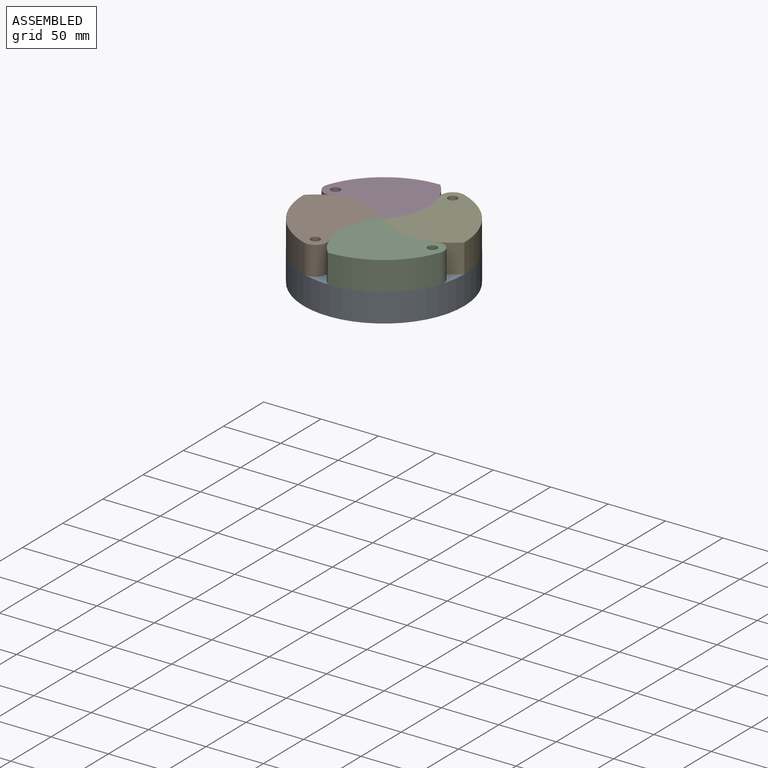
[diagram: assembled view]
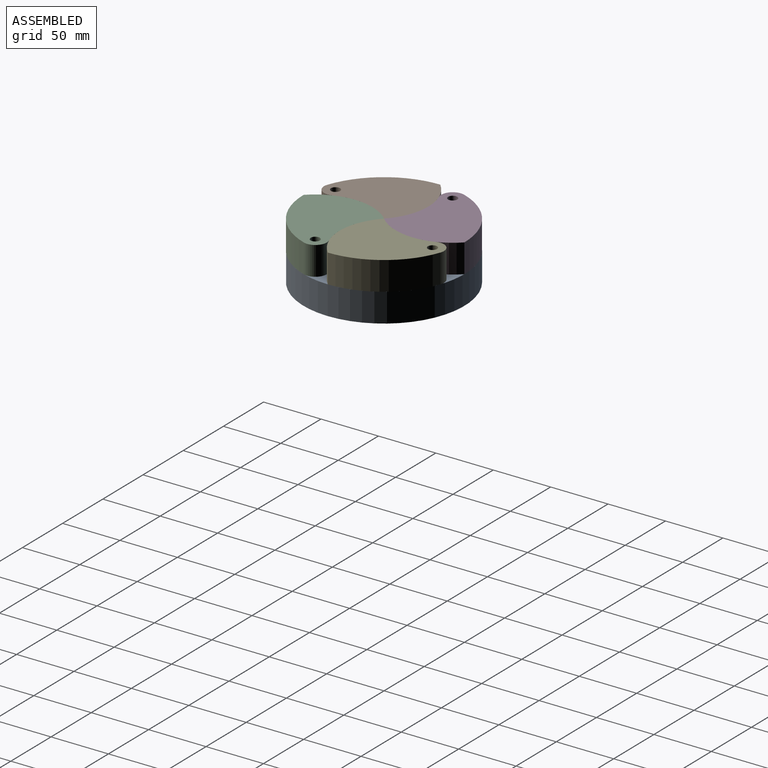
[diagram: assembled view, second angle]
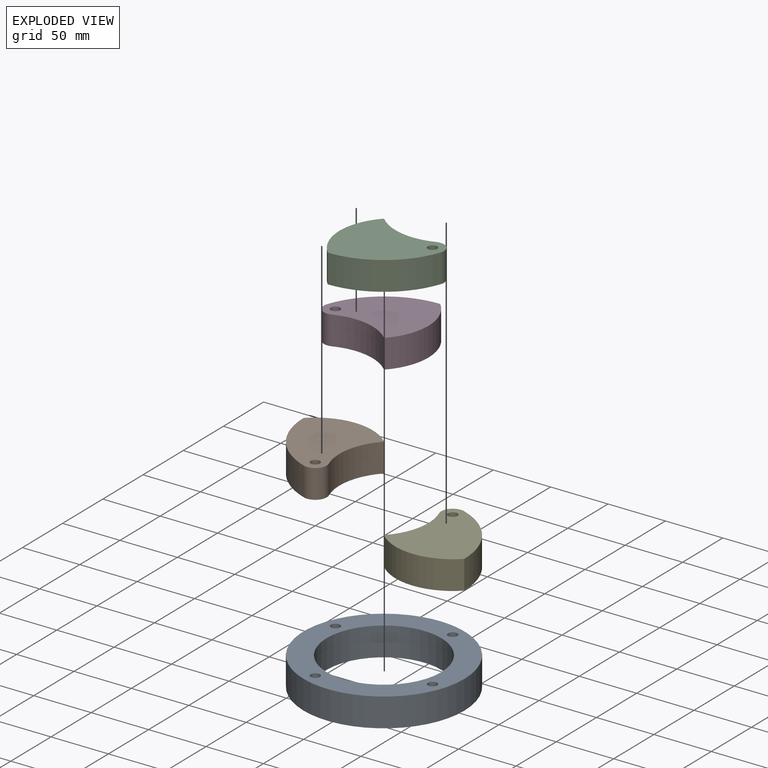
[diagram: exploded view]
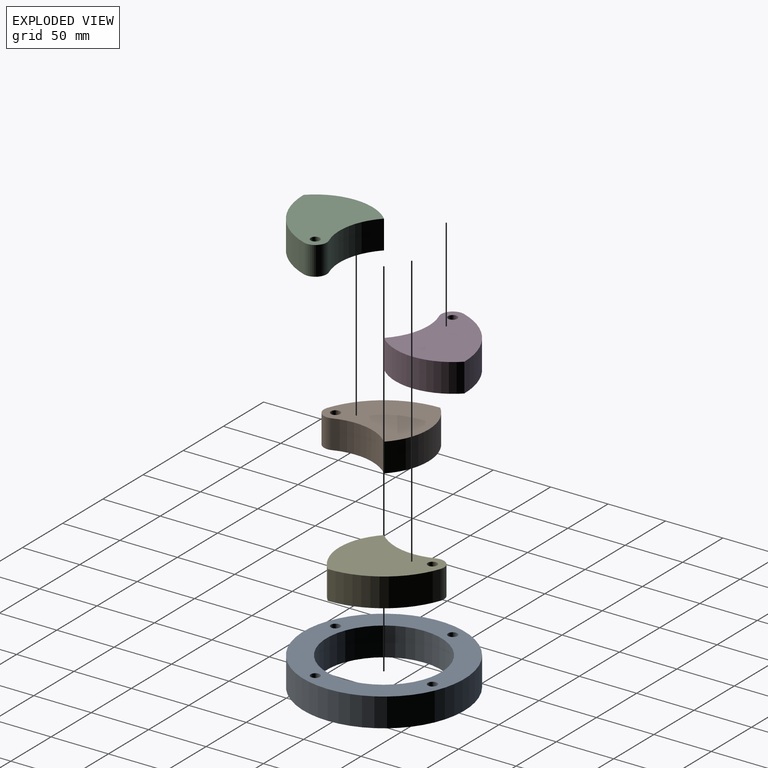
[diagram: exploded view, second angle]
ASSEMBLY  parts=5 mates=4
PART A: 8 faces, bbox 140x140x25 mm
  f0: cylinder r=4mm len=25mm, axis (0,0,1), area 628.3mm2, adj f6,f7
  f1: cylinder r=4mm len=25mm, axis (0,0,1), area 628.3mm2, adj f6,f7
  f2: cylinder r=4mm len=25mm, axis (0,0,1), area 628.3mm2, adj f6,f7
  f3: cylinder r=70mm len=140mm, axis (0,0,1), area 10995.6mm2, adj f6,f7
  f4: cylinder r=50mm len=100mm, axis (0,0,1), area 7854mm2, adj f6,f7
  f5: cylinder r=4mm len=25mm, axis (0,0,1), area 628.3mm2, adj f6,f7
  f6: plane 140x140mm, normal (0,0,-1), area 7338.8mm2, adj f0,f1,f2,f3,f4,f5
  f7: plane 140x140mm, normal (0,0,1), area 7338.8mm2, adj f0,f1,f2,f3,f4,f5
PART B: 7 faces, bbox 70x80.7x25 mm
  f0: cylinder r=50mm len=52.88mm, axis (0,0,-1), area 1426.3mm2, adj f1,f3,f5,f6
  f1: cylinder r=50mm len=70mm, axis (0,0,-1), area 1938.5mm2, adj f0,f2,f5,f6
  f2: cylinder r=70mm len=65.86mm, axis (0,0,-1), area 2144.1mm2, adj f1,f3,f5,f6
  f3: cylinder r=10mm len=25mm, axis (0,0,-1), area 570.5mm2, adj f0,f2,f5,f6
  f4: cylinder r=4mm len=25mm, axis (0,0,-1), area 628.3mm2, adj f5,f6
  f5: plane 80.74x70mm, normal (0,0,1), area 3691.6mm2, adj f0,f1,f2,f3,f4
  f6: plane 80.74x70mm, normal (0,0,-1), area 3691.6mm2, adj f0,f1,f2,f3,f4
PART C: 7 faces, bbox 80.7x70x25 mm
  f0: cylinder r=50mm len=52.88mm, axis (0,0,-1), area 1426.3mm2, adj f1,f3,f5,f6
  f1: cylinder r=50mm len=70mm, axis (0,0,-1), area 1938.5mm2, adj f0,f2,f5,f6
  f2: cylinder r=70mm len=65.86mm, axis (0,0,-1), area 2144.1mm2, adj f1,f3,f5,f6
  f3: cylinder r=10mm len=25mm, axis (0,0,-1), area 570.5mm2, adj f0,f2,f5,f6
  f4: cylinder r=4mm len=25mm, axis (0,0,-1), area 628.3mm2, adj f5,f6
  f5: plane 80.74x70mm, normal (0,0,1), area 3691.6mm2, adj f0,f1,f2,f3,f4
  f6: plane 80.74x70mm, normal (0,0,-1), area 3691.6mm2, adj f0,f1,f2,f3,f4
PART D: 7 faces, bbox 80.7x70x25 mm
  f0: cylinder r=50mm len=52.88mm, axis (0,0,-1), area 1426.3mm2, adj f1,f3,f5,f6
  f1: cylinder r=50mm len=70mm, axis (0,0,-1), area 1938.5mm2, adj f0,f2,f5,f6
  f2: cylinder r=70mm len=65.86mm, axis (0,0,-1), area 2144.1mm2, adj f1,f3,f5,f6
  f3: cylinder r=10mm len=25mm, axis (0,0,-1), area 570.5mm2, adj f0,f2,f5,f6
  f4: cylinder r=4mm len=25mm, axis (0,0,-1), area 628.3mm2, adj f5,f6
  f5: plane 80.74x70mm, normal (0,0,1), area 3691.6mm2, adj f0,f1,f2,f3,f4
  f6: plane 80.74x70mm, normal (0,0,-1), area 3691.6mm2, adj f0,f1,f2,f3,f4
PART E: 7 faces, bbox 70x80.7x25 mm
  f0: cylinder r=50mm len=52.88mm, axis (0,0,-1), area 1426.3mm2, adj f1,f3,f5,f6
  f1: cylinder r=50mm len=70mm, axis (0,0,-1), area 1938.5mm2, adj f0,f2,f5,f6
  f2: cylinder r=70mm len=65.86mm, axis (0,0,-1), area 2144.1mm2, adj f1,f3,f5,f6
  f3: cylinder r=10mm len=25mm, axis (0,0,-1), area 570.5mm2, adj f0,f2,f5,f6
  f4: cylinder r=4mm len=25mm, axis (0,0,-1), area 628.3mm2, adj f5,f6
  f5: plane 80.74x70mm, normal (0,0,1), area 3691.6mm2, adj f0,f1,f2,f3,f4
  f6: plane 80.74x70mm, normal (0,0,-1), area 3691.6mm2, adj f0,f1,f2,f3,f4
PLACE A at identity fixed
PLACE B rot(axis=(0,0,1),0deg) t=(0,0,0)mm
PLACE C rot(axis=(0,0,1),0deg) t=(0,0,0)mm
PLACE D rot(axis=(0,0,1),0deg) t=(0,0,0)mm
PLACE E rot(axis=(0,0,1),0deg) t=(0,0,0)mm
MATE revolute A.f1 <-> E.f3  axis (0,0,1) through (20.33,56.45,0)mm
MATE revolute A.f5 <-> B.f3  axis (0,0,1) through (-20.33,-56.45,0)mm
MATE revolute A.f2 <-> D.f3  axis (0,0,1) through (-56.45,20.33,0)mm
MATE revolute A.f0 <-> C.f3  axis (0,0,1) through (56.45,-20.33,0)mm
